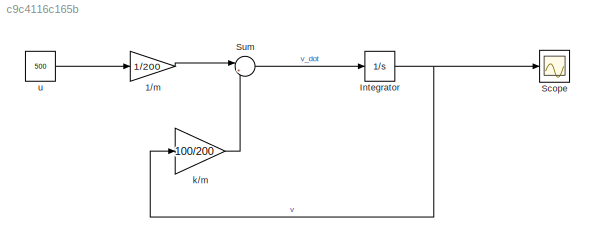
MODEL slx_c9c4116c165b
KIND model
CONFIG AbsTol = auto
CONFIG EnableMultiTasking = off
CONFIG FixedStep = auto
CONFIG MaxStep = auto
CONFIG MinStep = auto
CONFIG RelTol = 1e-3
CONFIG SampleTimeConstraint = Unconstrained
CONFIG SolverName = ode1
CONFIG StartTime = 0.0
CONFIG StopTime = 15.0
BLOCK [Gain] 1//m
  Gain = 1/200
BLOCK [Integrator] Integrator
BLOCK [Scope] Scope
  Floating = off
  NumInputPorts = 1
  ScopeSpecificationString = Simulink.scopes.TimeScopeBlockCfg('CurrentConfiguration', extmgr.ConfigurationSet(extmgr.Configuration('Core','General UI',true),extmgr.Configuration('Core','Source UI',true),extmgr.Configuration('Sources','WiredSimulink',true),extmgr.Configuration('Visuals','Time Domain',true,'SerializedDisplays',{struct('MinYLimReal','-0.62482','MaxYLimReal','5.62334','YLabelReal','','MinYLimMag','0.00000','MaxY...<+1350ch>
BLOCK [Sum] Sum
  Inputs = |+-
BLOCK [Gain] k//m
  Gain = 100/200
BLOCK [Constant] u
  Value = 500
LINE 1//m:1 -> Sum:1
NET Integrator:1 -> Scope:1, k//m:1
LINE Sum:1 -> Integrator:1
LINE k//m:1 -> Sum:2
LINE u:1 -> 1//m:1
note: NET lines group one-source signal fan-out (src -> all destinations, sorted); 1:1 wires keep LINE
